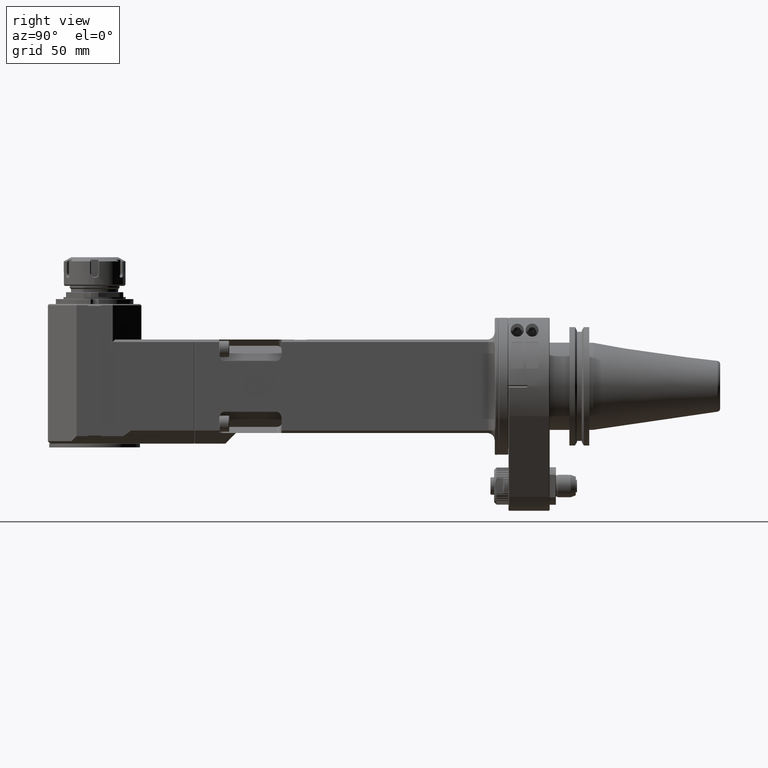
[diagram: clean part render]
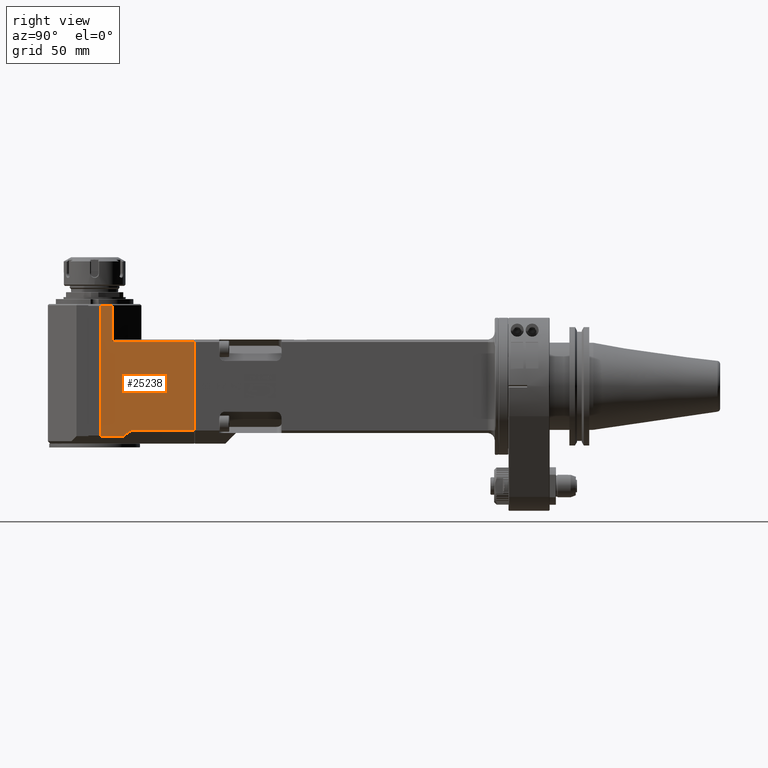
[diagram: same view with one face highlighted and labeled with its STEP entity id]
A machine part, right view. The second image highlights one B-rep face of the part: STEP entity #25238.
In plain terms, the highlighted planar face has unit normal (1, 0, -0).
Its self-contained STEP definition (entity closure, byte-faithful):
#1587=LINE('',#38677,#3672);
#1596=LINE('',#38693,#3681);
#1597=LINE('',#38696,#3682);
#1598=LINE('',#38698,#3683);
#1599=LINE('',#38700,#3684);
#1600=LINE('',#38702,#3685);
#1601=LINE('',#38704,#3686);
#1602=LINE('',#38705,#3687);
#3672=VECTOR('',#29811,9.5);
#3681=VECTOR('',#29826,105.);
#3682=VECTOR('',#29829,17.98528137424);
#3683=VECTOR('',#29830,7.79422863405972);
#3684=VECTOR('',#29831,50.45075759508);
#3685=VECTOR('',#29832,71.);
#3686=VECTOR('',#29833,65.3);
#3687=VECTOR('',#29834,29.5);
#6181=FACE_OUTER_BOUND('',#7711,.T.);
#7711=EDGE_LOOP('',(#17207,#17208,#17209,#17210,#17211,#17212,#17213,#17214));
#10354=VERTEX_POINT('',#38674);
#10355=VERTEX_POINT('',#38676);
#10359=VERTEX_POINT('',#38691);
#10360=VERTEX_POINT('',#38695);
#10361=VERTEX_POINT('',#38697);
#10362=VERTEX_POINT('',#38699);
#10363=VERTEX_POINT('',#38701);
#10364=VERTEX_POINT('',#38703);
#13021=EDGE_CURVE('',#10354,#10355,#1587,.T.);
#13030=EDGE_CURVE('',#10359,#10354,#1596,.T.);
#13031=EDGE_CURVE('',#10360,#10359,#1597,.T.);
#13032=EDGE_CURVE('',#10360,#10361,#1598,.T.);
#13033=EDGE_CURVE('',#10362,#10361,#1599,.T.);
#13034=EDGE_CURVE('',#10363,#10362,#1600,.T.);
#13035=EDGE_CURVE('',#10364,#10363,#1601,.T.);
#13036=EDGE_CURVE('',#10364,#10355,#1602,.T.);
#17207=ORIENTED_EDGE('',*,*,#13021,.F.);
#17208=ORIENTED_EDGE('',*,*,#13030,.F.);
#17209=ORIENTED_EDGE('',*,*,#13031,.F.);
#17210=ORIENTED_EDGE('',*,*,#13032,.T.);
#17211=ORIENTED_EDGE('',*,*,#13033,.F.);
#17212=ORIENTED_EDGE('',*,*,#13034,.F.);
#17213=ORIENTED_EDGE('',*,*,#13035,.F.);
#17214=ORIENTED_EDGE('',*,*,#13036,.T.);
#24425=PLANE('',#26963);
#25238=ADVANCED_FACE('',(#6181),#24425,.T.);
#26963=AXIS2_PLACEMENT_3D('',#38694,#29827,#29828);
#29811=DIRECTION('',(0.,1.,0.));
#29826=DIRECTION('',(0.,0.,1.));
#29827=DIRECTION('center_axis',(1.,0.,0.));
#29828=DIRECTION('ref_axis',(0.,1.,0.));
#29829=DIRECTION('',(0.,-1.,0.));
#29830=DIRECTION('',(0.,0.816496580927729,0.577350269189621));
#29831=DIRECTION('',(0.,-1.,0.));
#29832=DIRECTION('',(0.,0.,-1.));
#29833=DIRECTION('',(0.,1.,0.));
#29834=DIRECTION('',(0.,0.,1.));
#38674=CARTESIAN_POINT('',(37.5,-327.,65.));
#38676=CARTESIAN_POINT('',(37.5,-317.5,65.));
#38677=CARTESIAN_POINT('',(37.5,-327.,65.));
#38691=CARTESIAN_POINT('',(37.5,-327.,-40.));
#38693=CARTESIAN_POINT('',(37.5,-327.,-40.));
#38694=CARTESIAN_POINT('Origin',(37.5,-369.5,-46.));
#38695=CARTESIAN_POINT('',(37.5,-309.0147186258,-40.));
#38696=CARTESIAN_POINT('',(37.5,-309.0147186258,-40.));
#38697=CARTESIAN_POINT('',(37.5,-302.6507575951,-35.5));
#38698=CARTESIAN_POINT('',(37.5,-309.0147186258,-40.));
#38699=CARTESIAN_POINT('',(37.5,-252.2,-35.5));
#38700=CARTESIAN_POINT('',(37.5,-252.2,-35.5));
#38701=CARTESIAN_POINT('',(37.5,-252.2,35.5));
#38702=CARTESIAN_POINT('',(37.5,-252.2,35.5));
#38703=CARTESIAN_POINT('',(37.5,-317.5,35.5));
#38704=CARTESIAN_POINT('',(37.5,-317.5,35.5));
#38705=CARTESIAN_POINT('',(37.5,-317.5,35.5));